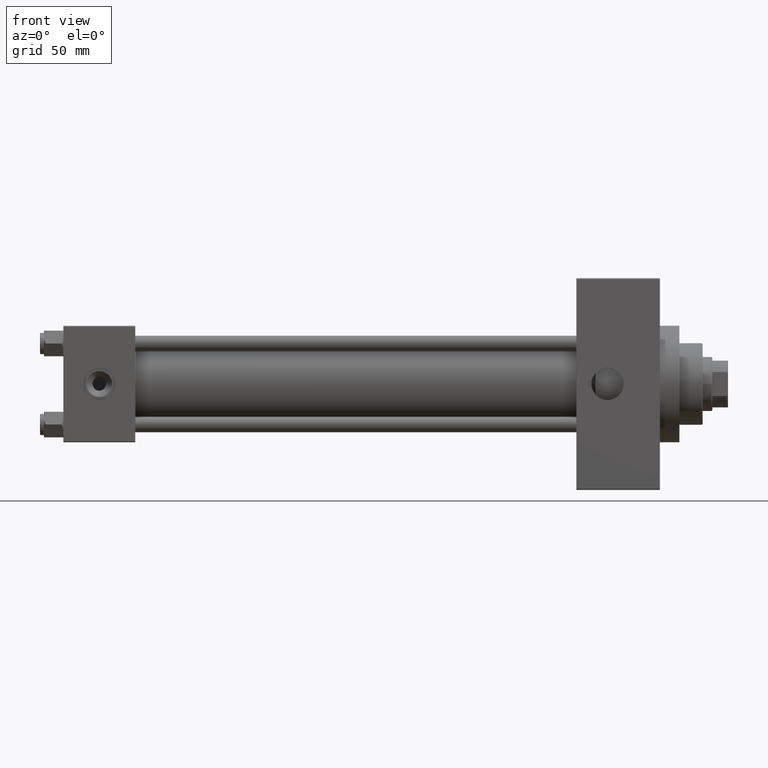
[diagram: clean part render]
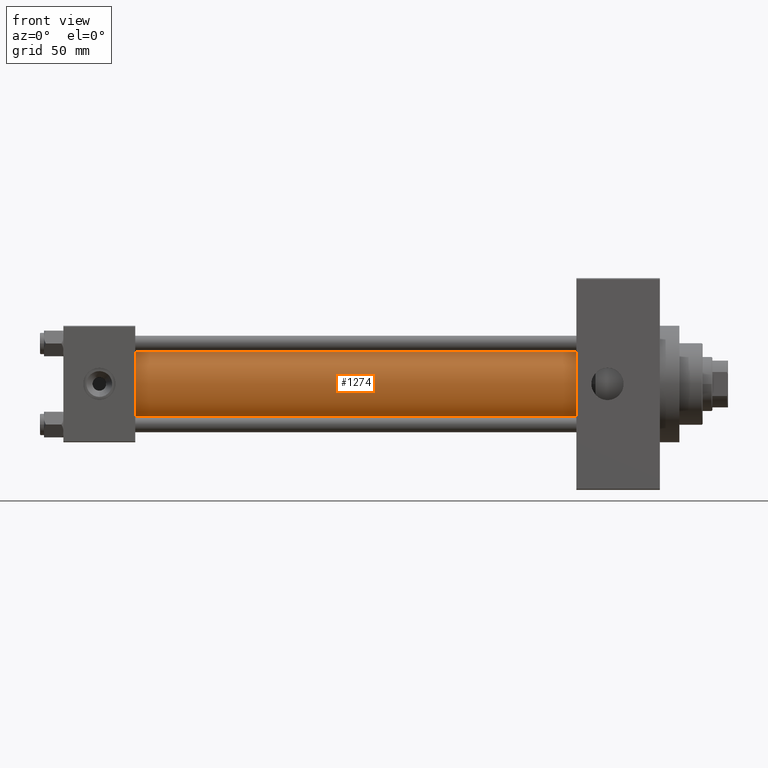
[diagram: same view with one face highlighted and labeled with its STEP entity id]
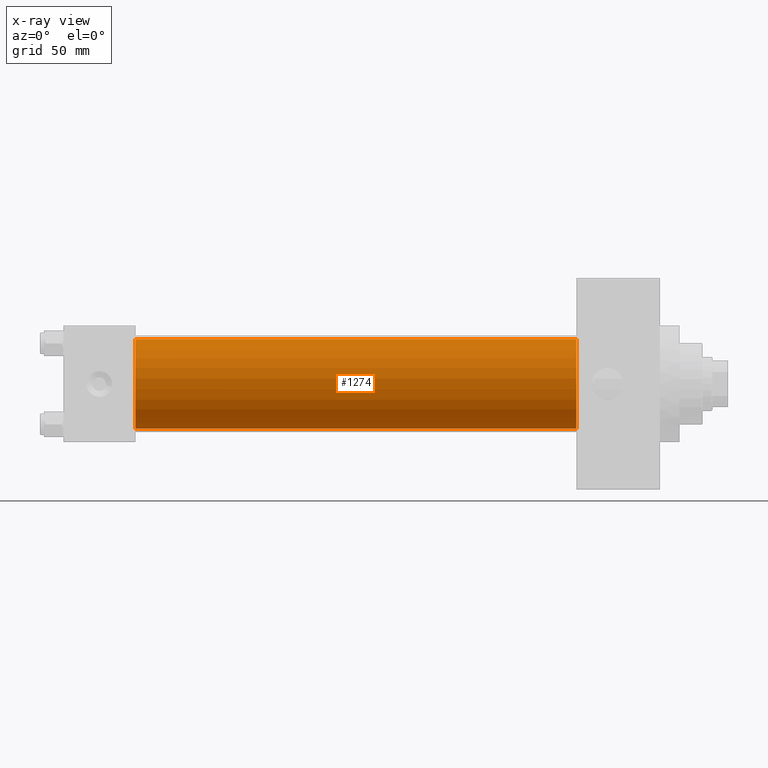
[diagram: x-ray of the same camera — body ghosted, the highlighted face saturated]
A machine part, front view. The second image highlights one B-rep face of the part: STEP entity #1274.
The next image is the same camera in x-ray: the body ghosted, the highlighted face saturated — about 0% of this face is hidden behind the body in this view.
In plain terms, the highlighted cylindrical surface (partial cylindrical patch) has radius 23 mm, axis along (-1, -0, -0).
Its self-contained STEP definition (entity closure, byte-faithful):
#37 = CARTESIAN_POINT ( 'NONE',  ( 264.0000000000000000, -2.602085213965210642E-15, 0.000000000000000000 ) ) ;
#1274 = ADVANCED_FACE ( 'NONE', ( #33713 ), #33467, .T. ) ;
#2578 = CIRCLE ( 'NONE', #17714, 23.00000000000000000 ) ;
#6352 = AXIS2_PLACEMENT_3D ( 'NONE', #37, #48651, #18982 ) ;
#6902 = CARTESIAN_POINT ( 'NONE',  ( 264.0000000000000000, 2.146024240737012665E-16, -23.00000000000000000 ) ) ;
#7351 = ORIENTED_EDGE ( 'NONE', *, *, #10538, .T. ) ;
#8258 = DIRECTION ( 'NONE',  ( 1.000000000000000000, -0.000000000000000000, 0.000000000000000000 ) ) ;
#9026 = DIRECTION ( 'NONE',  ( -1.000000000000000000, -0.000000000000000000, -0.000000000000000000 ) ) ;
#10538 = EDGE_CURVE ( 'NONE', #17269, #20551, #2578, .T. ) ;
#10878 = EDGE_CURVE ( 'NONE', #18054, #28763, #25691, .T. ) ;
#16148 = CARTESIAN_POINT ( 'NONE',  ( 264.0000000000000000, -2.602085213965210642E-15, 23.00000000000000000 ) ) ;
#16163 = CARTESIAN_POINT ( 'NONE',  ( 264.0000000000000000, -2.602085213965210642E-15, 0.000000000000000000 ) ) ;
#16176 = AXIS2_PLACEMENT_3D ( 'NONE', #16163, #43573, #46821 ) ;
#17269 = VERTEX_POINT ( 'NONE', #25291 ) ;
#17714 = AXIS2_PLACEMENT_3D ( 'NONE', #38454, #8258, #46160 ) ;
#18054 = VERTEX_POINT ( 'NONE', #16148 ) ;
#18982 = DIRECTION ( 'NONE',  ( 0.000000000000000000, 0.000000000000000000, 1.000000000000000000 ) ) ;
#20551 = VERTEX_POINT ( 'NONE', #35379 ) ;
#21609 = DIRECTION ( 'NONE',  ( -1.000000000000000000, -0.000000000000000000, -0.000000000000000000 ) ) ;
#25291 = CARTESIAN_POINT ( 'NONE',  ( 37.00000000000000711, -2.602085213965210642E-15, 23.00000000000000000 ) ) ;
#25691 = CIRCLE ( 'NONE', #16176, 23.00000000000000000 ) ;
#27267 = VECTOR ( 'NONE', #9026, 1000.000000000000000 ) ;
#27684 = EDGE_CURVE ( 'NONE', #18054, #17269, #48035, .T. ) ;
#28109 = CARTESIAN_POINT ( 'NONE',  ( 264.0000000000000000, -2.602085213965210642E-15, 23.00000000000000000 ) ) ;
#28368 = EDGE_LOOP ( 'NONE', ( #46001, #41236, #42532, #7351 ) ) ;
#28763 = VERTEX_POINT ( 'NONE', #6902 ) ;
#33467 = CYLINDRICAL_SURFACE ( 'NONE', #6352, 23.00000000000000000 ) ;
#33713 = FACE_OUTER_BOUND ( 'NONE', #28368, .T. ) ;
#35379 = CARTESIAN_POINT ( 'NONE',  ( 37.00000000000000711, 2.146024240737012665E-16, -23.00000000000000000 ) ) ;
#38454 = CARTESIAN_POINT ( 'NONE',  ( 37.00000000000000711, -2.602085213965210642E-15, 0.000000000000000000 ) ) ;
#41236 = ORIENTED_EDGE ( 'NONE', *, *, #10878, .F. ) ;
#42532 = ORIENTED_EDGE ( 'NONE', *, *, #27684, .T. ) ;
#43573 = DIRECTION ( 'NONE',  ( 1.000000000000000000, 0.000000000000000000, 0.000000000000000000 ) ) ;
#45831 = EDGE_CURVE ( 'NONE', #28763, #20551, #47669, .T. ) ;
#46001 = ORIENTED_EDGE ( 'NONE', *, *, #45831, .F. ) ;
#46160 = DIRECTION ( 'NONE',  ( 0.000000000000000000, 0.000000000000000000, 1.000000000000000000 ) ) ;
#46821 = DIRECTION ( 'NONE',  ( 0.000000000000000000, 0.000000000000000000, -1.000000000000000000 ) ) ;
#46960 = VECTOR ( 'NONE', #21609, 1000.000000000000000 ) ;
#47180 = CARTESIAN_POINT ( 'NONE',  ( 264.0000000000000000, 2.146024240737012665E-16, -23.00000000000000000 ) ) ;
#47669 = LINE ( 'NONE', #47180, #27267 ) ;
#48035 = LINE ( 'NONE', #28109, #46960 ) ;
#48651 = DIRECTION ( 'NONE',  ( -1.000000000000000000, -0.000000000000000000, -0.000000000000000000 ) ) ;